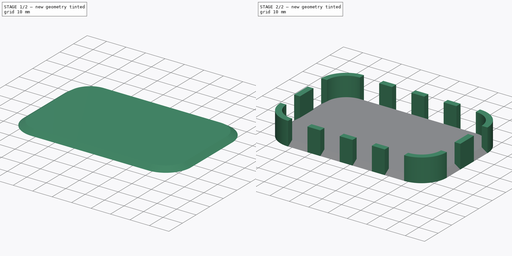
[diagram: build sequence overview — one tinted view per stage of 2, left to right]
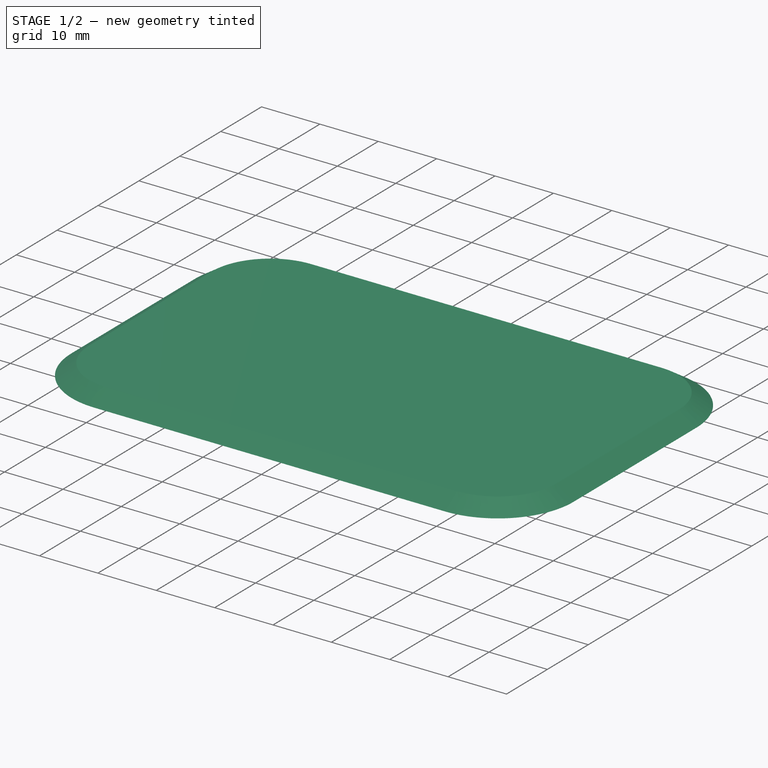
[diagram: stage 1 of 2 — iso view after this stage's code; geometry added in this stage tinted green]
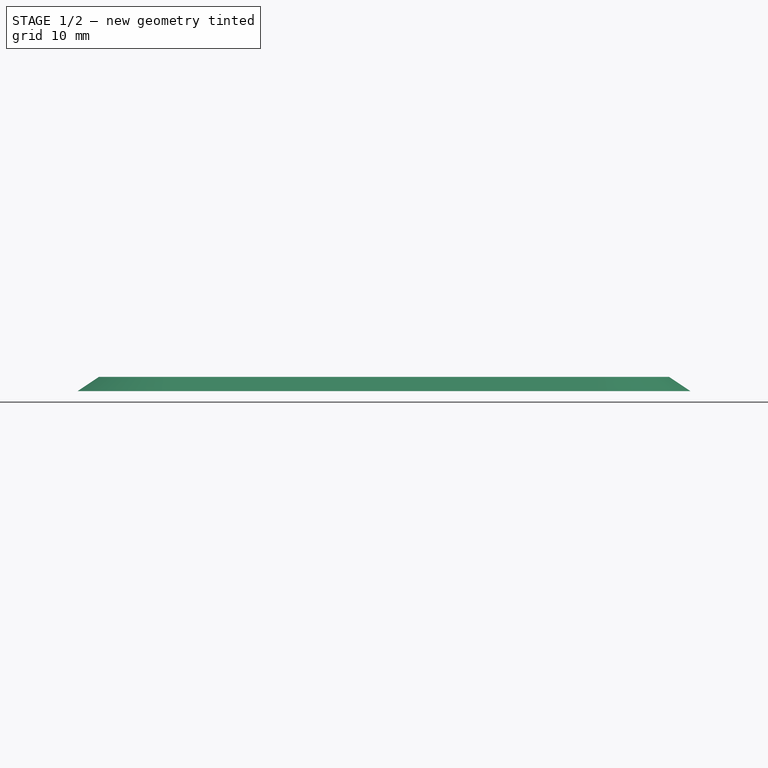
[diagram: stage 1 of 2 — front view after this stage's code; geometry added in this stage tinted green]
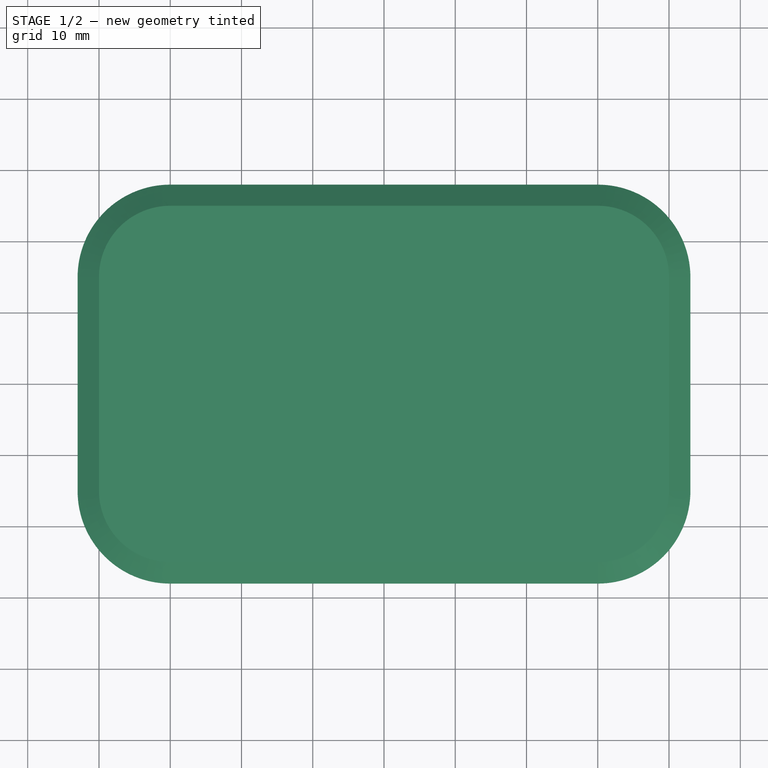
[diagram: stage 1 of 2 — top view after this stage's code; geometry added in this stage tinted green]
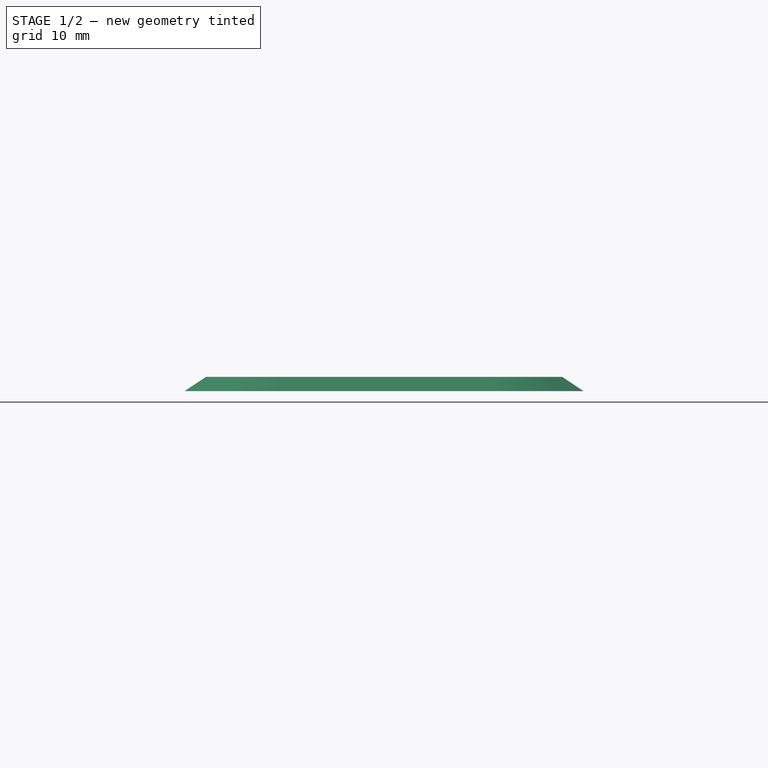
[diagram: stage 1 of 2 — right view after this stage's code; geometry added in this stage tinted green]
FCSTD DOCUMENT  (FreeCAD 2024.3R38774 (Git))
Label: ant bait box 3
License: All rights reserved
LicenseURL: https://en.wikipedia.org/wiki/All_rights_reserved
objects: Sketcher::SketchObject×4, PartDesign::Pad×2, PartDesign::AdditivePipe×1, PartDesign::Body×1
note: 18 computed .brp shape members not serialized (recipe doc carries the construction recipe); baked Part::Feature solids carry a one-line shape summary decoded from their .brp

FEATURE [Sketcher::SketchObject] Sketch  label="path"
  ArcFitTolerance = 1e-06
  AttachmentSupport = -> [XY_Plane]
  FullyConstrained = true
  MakeInternals = false
  MapMode = 5
  sketch-geometry (13):
    g0: LineSegment StartX=-40 StartY=15 StartZ=0 EndX=-40 EndY=-15 EndZ=0
    g1: LineSegment StartX=-30 StartY=-25 StartZ=0 EndX=30 EndY=-25 EndZ=0
    g2: LineSegment StartX=40 StartY=-15 StartZ=0 EndX=40 EndY=15 EndZ=0
    g3: LineSegment StartX=30 StartY=25 StartZ=0 EndX=-30 EndY=25 EndZ=0
    g4: GeomPoint [constr] X=0 Y=0 Z=0
    g5: ArcOfCircle CenterX=-30 CenterY=15 CenterZ=0 NormalX=0 NormalY=0 NormalZ=1 AngleXU=0 Radius=10 StartAngle=1.5708 EndAngle=3.14159
    g6: GeomPoint [constr] X=-40 Y=25 Z=0
    g7: ArcOfCircle CenterX=-30 CenterY=-15 CenterZ=0 NormalX=0 NormalY=0 NormalZ=1 AngleXU=0 Radius=10 StartAngle=3.14159 EndAngle=4.71239
    g8: GeomPoint [constr] X=-40 Y=-25 Z=0
    g9: ArcOfCircle CenterX=30 CenterY=-15 CenterZ=0 NormalX=0 NormalY=0 NormalZ=1 AngleXU=0 Radius=10 StartAngle=4.71239 EndAngle=6.28319
    g10: GeomPoint [constr] X=40 Y=-25 Z=0
    g11: ArcOfCircle CenterX=30 CenterY=15 CenterZ=0 NormalX=0 NormalY=0 NormalZ=1 AngleXU=0 Radius=10 StartAngle=0 EndAngle=1.5708
    g12: GeomPoint [constr] X=40 Y=25 Z=0
  constraints (28):
    c: Vertical(g0)
    c: Vertical(g2)
    c: Horizontal(g1)
    c: Horizontal(g3)
    c: Symmetric(g10,g6,g4)
    c: Coincident(g4,g-1)
    c: PointOnObject(g6,g3)
    c: PointOnObject(g6,g0)
    c: Tangent(g3,g5) = -1.5708
    c: Tangent(g0,g5) = -1.5708
    c: PointOnObject(g8,g0)
    c: PointOnObject(g8,g1)
    c: Tangent(g0,g7) = -1.5708
    c: Tangent(g1,g7) = -1.5708
    c: PointOnObject(g10,g1)
    c: PointOnObject(g10,g2)
    c: Tangent(g1,g9) = -1.5708
    c: Tangent(g2,g9) = -1.5708
    c: PointOnObject(g12,g2)
    c: PointOnObject(g12,g3)
    c: Tangent(g2,g11) = -1.5708
    c: Tangent(g3,g11) = -1.5708
    c: Equal(g5,g11)
    c: Equal(g11,g9)
    c: Equal(g9,g7)
    c: Diameter(g5) = 20
    c: DistanceY(g1,g3) = 50
    c: DistanceX(g0,g2) = 80
FEATURE [Sketcher::SketchObject] Sketch001
  ArcFitTolerance = 1e-06
  AttachmentSupport = -> [XY_Plane]
  FullyConstrained = true
  MakeInternals = false
  MapMode = 5
  sketch-geometry (13):
    g0: LineSegment StartX=-40 StartY=15 StartZ=0 EndX=-40 EndY=-15 EndZ=0
    g1: LineSegment StartX=-30 StartY=-25 StartZ=0 EndX=30 EndY=-25 EndZ=0
    g2: LineSegment StartX=40 StartY=-15 StartZ=0 EndX=40 EndY=15 EndZ=0
    g3: LineSegment StartX=30 StartY=25 StartZ=0 EndX=-30 EndY=25 EndZ=0
    g4: GeomPoint [constr] X=0 Y=0 Z=0
    g5: ArcOfCircle CenterX=-30 CenterY=15 CenterZ=0 NormalX=0 NormalY=0 NormalZ=1 AngleXU=0 Radius=10 StartAngle=1.5708 EndAngle=3.14159
    g6: GeomPoint [constr] X=-40 Y=25 Z=0
    g7: ArcOfCircle CenterX=-30 CenterY=-15 CenterZ=0 NormalX=0 NormalY=0 NormalZ=1 AngleXU=0 Radius=10 StartAngle=3.14159 EndAngle=4.71239
    g8: GeomPoint [constr] X=-40 Y=-25 Z=0
    g9: ArcOfCircle CenterX=30 CenterY=-15 CenterZ=0 NormalX=0 NormalY=0 NormalZ=1 AngleXU=0 Radius=10 StartAngle=4.71239 EndAngle=6.28319
    g10: GeomPoint [constr] X=40 Y=-25 Z=0
    g11: ArcOfCircle CenterX=30 CenterY=15 CenterZ=0 NormalX=0 NormalY=0 NormalZ=1 AngleXU=0 Radius=10 StartAngle=0 EndAngle=1.5708
    g12: GeomPoint [constr] X=40 Y=25 Z=0
  constraints (28):
    c: Vertical(g0)
    c: Vertical(g2)
    c: Horizontal(g1)
    c: Horizontal(g3)
    c: Symmetric(g10,g6,g4)
    c: Coincident(g4,g-1)
    c: PointOnObject(g6,g3)
    c: PointOnObject(g6,g0)
    c: Tangent(g3,g5) = -1.5708
    c: Tangent(g0,g5) = -1.5708
    c: PointOnObject(g8,g0)
    c: PointOnObject(g8,g1)
    c: Tangent(g0,g7) = -1.5708
    c: Tangent(g1,g7) = -1.5708
    c: PointOnObject(g10,g1)
    c: PointOnObject(g10,g2)
    c: Tangent(g1,g9) = -1.5708
    c: Tangent(g2,g9) = -1.5708
    c: PointOnObject(g12,g2)
    c: PointOnObject(g12,g3)
    c: Tangent(g2,g11) = -1.5708
    c: Tangent(g3,g11) = -1.5708
    c: Equal(g5,g11)
    c: Equal(g11,g9)
    c: Equal(g9,g7)
    c: Diameter(g5) = 20
    c: DistanceY(g1,g3) = 50
    c: DistanceX(g0,g2) = 80
FEATURE [Sketcher::SketchObject] Sketch002  label="prof"
  ArcFitTolerance = 1e-06
  AttachmentSupport = -> [YZ_Plane]
  FullyConstrained = true
  MakeInternals = false
  MapMode = 5
  Placement = pos=(0,0,0) rot=(0.57735,0.57735,0.57735;2.0944rad)
  sketch-geometry (3):
    g0: LineSegment StartX=-25 StartY=0 StartZ=0 EndX=-28 EndY=0 EndZ=0
    g1: LineSegment StartX=-28 StartY=0 StartZ=0 EndX=-25 EndY=2 EndZ=0
    g2: LineSegment StartX=-25 StartY=2 StartZ=0 EndX=-25 EndY=0 EndZ=0
  constraints (9):
    c: PointOnObject(g0,g-1)
    c: PointOnObject(g0,g-1)
    c: Coincident(g0,g1)
    c: Coincident(g1,g2)
    c: Coincident(g2,g0)
    c: Vertical(g2)
    c: DistanceY(g2,g2) = 2
    c: DistanceX(g0,g0) = 3
    c: DistanceX(g0,g-1) = 25
FEATURE [PartDesign::AdditivePipe] AdditivePipe
  AuxilleryCurvelinear = true
  AuxillerySpineTangent = false
  Binormal = (0,0,0)
  Mode = 0
  Placement = pos=(0,0,0) rot=(1,1,1;2.0944rad)
  Profile = -> Sketch002
  Refine = true
  Spine = -> Sketch
  SpineTangent = false
  Suppressed = false
  Transformation = 0
  Transition = 0
FEATURE [PartDesign::Pad] Pad
  BaseFeature = -> AdditivePipe
  Direction = (0,0,1)
  Length = 2
  Length2 = 10
  Placement = pos=(0,0,0) rot=(1,1,1;2.0944rad)
  Profile = -> Sketch001
  ReferenceAxis = -> Sketch001 [N_Axis]
  Refine = true
  Suppressed = false
  Type = 0
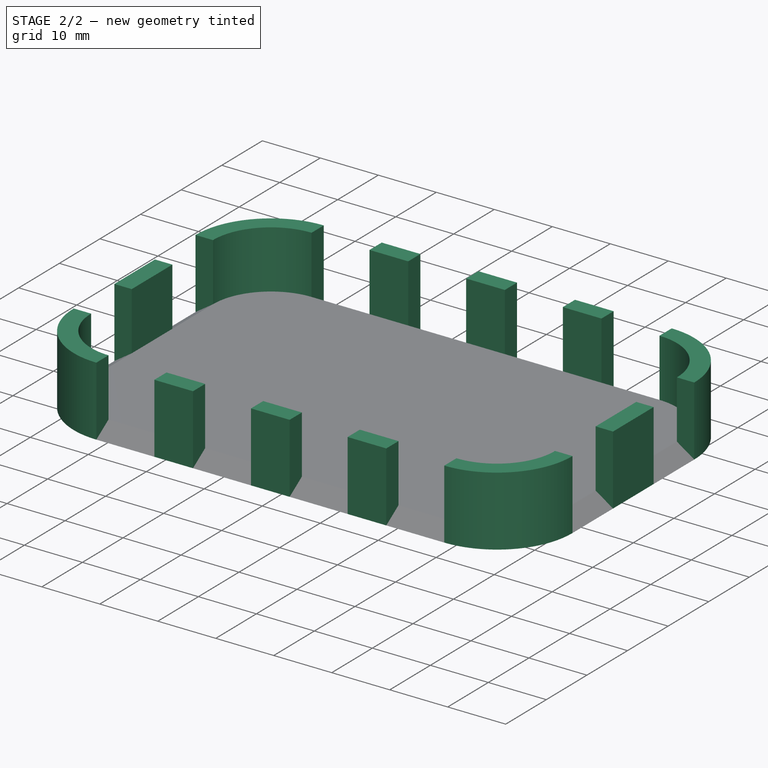
[diagram: stage 2 of 2 — iso view after this stage's code; geometry added in this stage tinted green]
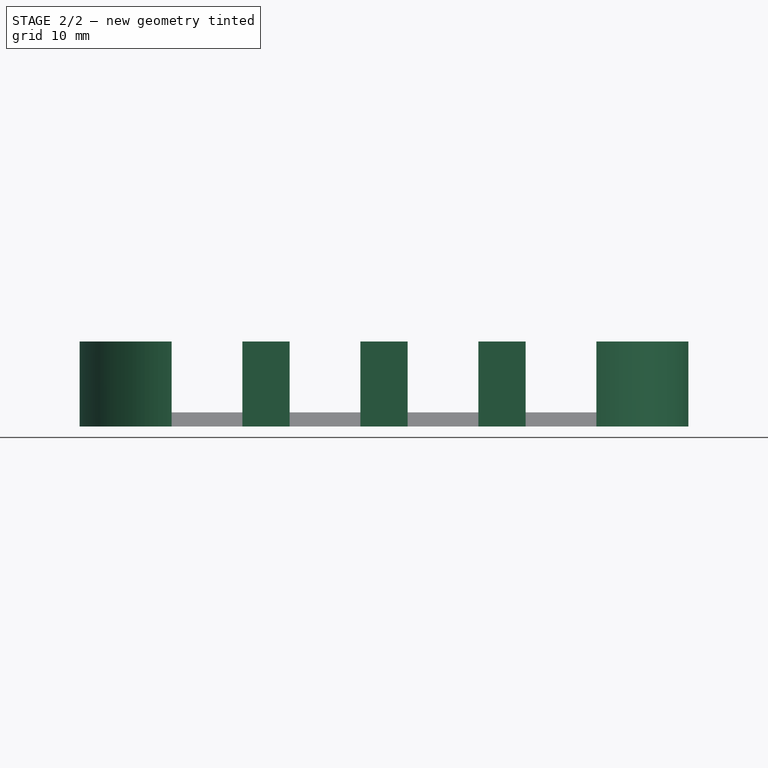
[diagram: stage 2 of 2 — front view after this stage's code; geometry added in this stage tinted green]
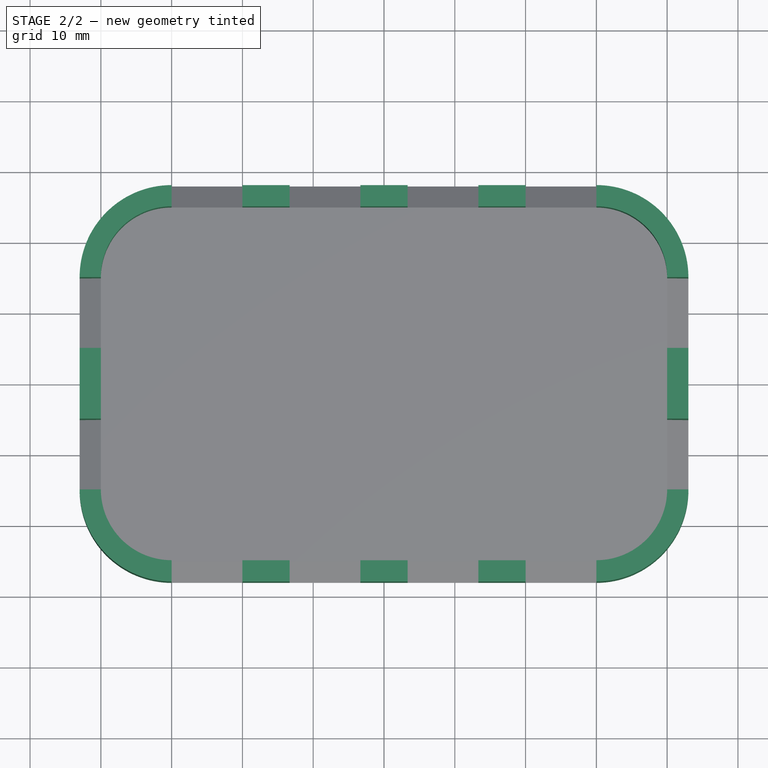
[diagram: stage 2 of 2 — top view after this stage's code; geometry added in this stage tinted green]
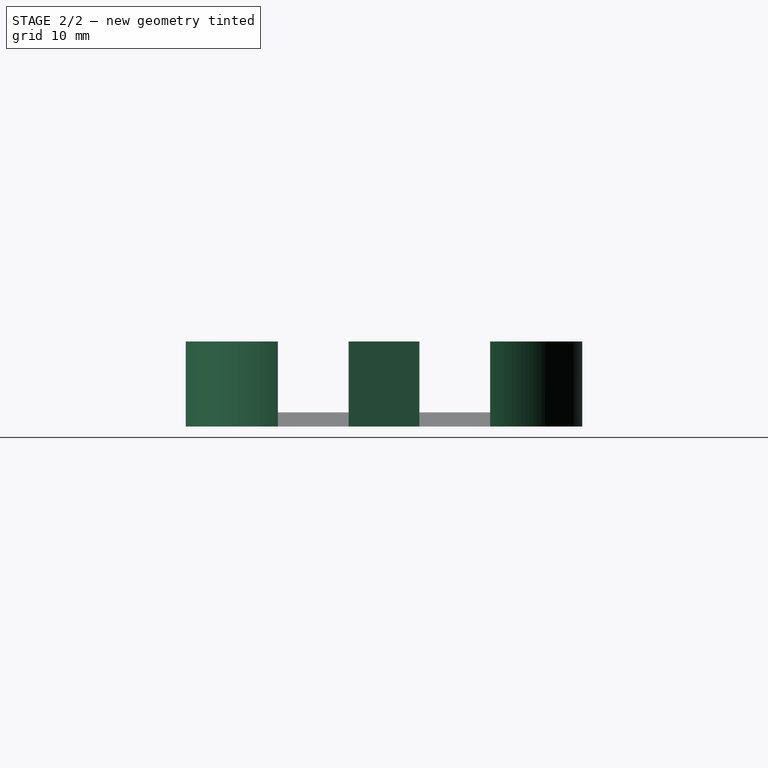
[diagram: stage 2 of 2 — right view after this stage's code; geometry added in this stage tinted green]
FEATURE [Sketcher::SketchObject] Sketch003  label="wall"
  ArcFitTolerance = 1e-06
  AttachmentSupport = -> [XY_Plane]
  FullyConstrained = true
  MakeInternals = false
  MapMode = 5
  sketch-geometry (48):
    g0: ArcOfCircle CenterX=-30 CenterY=15 CenterZ=0 NormalX=0 NormalY=0 NormalZ=1 AngleXU=0 Radius=13 StartAngle=1.5708 EndAngle=3.14159
    g1: ArcOfCircle CenterX=-30 CenterY=-15 CenterZ=0 NormalX=0 NormalY=0 NormalZ=1 AngleXU=0 Radius=13 StartAngle=3.14159 EndAngle=4.71239
    g2: ArcOfCircle CenterX=30 CenterY=-15 CenterZ=0 NormalX=0 NormalY=0 NormalZ=1 AngleXU=0 Radius=13 StartAngle=4.71239 EndAngle=6.28319
    g3: ArcOfCircle CenterX=30 CenterY=15 CenterZ=0 NormalX=0 NormalY=0 NormalZ=1 AngleXU=0 Radius=13 StartAngle=-1.8e-15 EndAngle=1.5708
    g4: LineSegment StartX=-30 StartY=25 StartZ=0 EndX=-30 EndY=28 EndZ=0
    g5: LineSegment StartX=30 StartY=25 StartZ=0 EndX=30 EndY=28 EndZ=0
    g6: LineSegment StartX=20 StartY=28 StartZ=0 EndX=20 EndY=25 EndZ=0
    g7: LineSegment StartX=20 StartY=25 StartZ=0 EndX=13.3333 EndY=25 EndZ=0
    g8: LineSegment StartX=13.3333 StartY=25 StartZ=0 EndX=13.3333 EndY=28 EndZ=0
    g9: LineSegment StartX=13.3333 StartY=28 StartZ=0 EndX=20 EndY=28 EndZ=0
    g10: LineSegment StartX=3.33333 StartY=28 StartZ=0 EndX=3.33333 EndY=25 EndZ=0
    g11: LineSegment StartX=3.33333 StartY=25 StartZ=0 EndX=-3.33333 EndY=25 EndZ=0
    g12: LineSegment StartX=-3.33333 StartY=25 StartZ=0 EndX=-3.33333 EndY=28 EndZ=0
    g13: LineSegment StartX=-3.33333 StartY=28 StartZ=0 EndX=3.33333 EndY=28 EndZ=0
    g14: LineSegment StartX=-20 StartY=28 StartZ=0 EndX=-13.3333 EndY=28 EndZ=0
    g15: LineSegment StartX=-13.3333 StartY=28 StartZ=0 EndX=-13.3333 EndY=25 EndZ=0
    g16: LineSegment StartX=-13.3333 StartY=25 StartZ=0 EndX=-20 EndY=25 EndZ=0
    g17: LineSegment StartX=-20 StartY=25 StartZ=0 EndX=-20 EndY=28 EndZ=0
    g18: ArcOfCircle CenterX=-30 CenterY=-15 CenterZ=0 NormalX=0 NormalY=0 NormalZ=1 AngleXU=0 Radius=10 StartAngle=3.14159 EndAngle=4.71239
    g19: ArcOfCircle CenterX=30 CenterY=-15 CenterZ=0 NormalX=0 NormalY=0 NormalZ=1 AngleXU=0 Radius=10 StartAngle=4.71239 EndAngle=6.28319
    g20: LineSegment StartX=-20 StartY=-25 StartZ=0 EndX=-20 EndY=-28 EndZ=0
    g21: LineSegment StartX=-20 StartY=-28 StartZ=0 EndX=-13.3333 EndY=-28 EndZ=0
    g22: LineSegment StartX=-13.3333 StartY=-28 StartZ=0 EndX=-13.3333 EndY=-25 EndZ=0
    g23: LineSegment StartX=-13.3333 StartY=-25 StartZ=0 EndX=-20 EndY=-25 EndZ=0
    g24: LineSegment StartX=-3.33333 StartY=-25 StartZ=0 EndX=-3.33333 EndY=-28 EndZ=0
    g25: LineSegment StartX=-3.33333 StartY=-28 StartZ=0 EndX=3.33333 EndY=-28 EndZ=0
    g26: LineSegment StartX=3.33333 StartY=-28 StartZ=0 EndX=3.33333 EndY=-25 EndZ=0
    g27: LineSegment StartX=3.33333 StartY=-25 StartZ=0 EndX=-3.33333 EndY=-25 EndZ=0
    g28: LineSegment StartX=13.3333 StartY=-25 StartZ=0 EndX=13.3333 EndY=-28 EndZ=0
    g29: LineSegment StartX=13.3333 StartY=-28 StartZ=0 EndX=20 EndY=-28 EndZ=0
    g30: LineSegment StartX=20 StartY=-28 StartZ=0 EndX=20 EndY=-25 EndZ=0
    g31: LineSegment StartX=20 StartY=-25 StartZ=0 EndX=13.3333 EndY=-25 EndZ=0
    g32: LineSegment StartX=-30 StartY=-28 StartZ=0 EndX=-30 EndY=-25 EndZ=0
    g33: LineSegment StartX=30 StartY=-28 StartZ=0 EndX=30 EndY=-25 EndZ=0
    g34: ArcOfCircle CenterX=-30 CenterY=15 CenterZ=0 NormalX=0 NormalY=0 NormalZ=1 AngleXU=0 Radius=10 StartAngle=1.5708 EndAngle=3.14159
    g35: ArcOfCircle CenterX=30 CenterY=15 CenterZ=0 NormalX=0 NormalY=0 NormalZ=1 AngleXU=0 Radius=10 StartAngle=-1.8e-15 EndAngle=1.5708
    g36: LineSegment StartX=-43 StartY=15 StartZ=0 EndX=-40 EndY=15 EndZ=0
    g37: LineSegment StartX=-43 StartY=-15 StartZ=0 EndX=-40 EndY=-15 EndZ=0
    g38: LineSegment StartX=40 StartY=-15 StartZ=0 EndX=43 EndY=-15 EndZ=0
    g39: LineSegment StartX=40 StartY=15 StartZ=0 EndX=43 EndY=15 EndZ=0
    g40: LineSegment StartX=-43 StartY=5 StartZ=0 EndX=-43 EndY=-5 EndZ=0
    g41: LineSegment StartX=-43 StartY=-5 StartZ=0 EndX=-40 EndY=-5 EndZ=0
    g42: LineSegment StartX=-40 StartY=-5 StartZ=0 EndX=-40 EndY=5 EndZ=0
    g43: LineSegment StartX=-40 StartY=5 StartZ=0 EndX=-43 EndY=5 EndZ=0
    g44: LineSegment StartX=40 StartY=5 StartZ=0 EndX=40 EndY=-5 EndZ=0
    g45: LineSegment StartX=40 StartY=-5 StartZ=0 EndX=43 EndY=-5 EndZ=0
    g46: LineSegment StartX=43 StartY=-5 StartZ=0 EndX=43 EndY=5 EndZ=0
    g47: LineSegment StartX=43 StartY=5 StartZ=0 EndX=40 EndY=5 EndZ=0
  constraints (149):
    c: Equal(g0,g3)
    c: Equal(g3,g2)
    c: DistanceX(g0,g3) = 60
    c: DistanceY(g1,g0) = 30
    c: Diameter(g0) = 26
    c: Coincident(g4,g0)
    c: Vertical(g4)
    c: Coincident(g5,g3)
    c: Vertical(g5)
    c: Vertical(g6)
    c: Coincident(g6,g7)
    c: Horizontal(g7)
    c: Coincident(g7,g8)
    c: Coincident(g8,g9)
    c: Coincident(g9,g6)
    c: Coincident(g10,g11)
    c: Coincident(g11,g12)
    c: Coincident(g12,g13)
    c: Coincident(g13,g10)
    c: Horizontal(g14)
    c: Coincident(g14,g15)
    c: Coincident(g15,g16)
    c: Horizontal(g16)
    c: Coincident(g16,g17)
    c: Coincident(g17,g14)
    c: Horizontal(g14,g0)
    c: Horizontal(g9)
    c: Horizontal(g14,g12)
    c: Horizontal(g10,g8)
    c: Horizontal(g6,g3)
    c: Horizontal(g5,g6)
    c: Horizontal(g7,g10)
    c: Horizontal(g11)
    c: Horizontal(g11,g15)
    c: Horizontal(g4,g16)
    c: Vertical(g17)
    c: Vertical(g15)
    c: Vertical(g12)
    c: Vertical(g10)
    c: Vertical(g8)
    c: Symmetric(g12,g10,g-2)
    c: DistanceX(g0,g14) = 10
    c: DistanceX(g14,g12) = 10
    c: DistanceX(g10,g8) = 10
    c: DistanceX(g6,g3) = 10
    c: Symmetric(g0,g1,g-1)
    c: DistanceY(g4,g4) = 3
    c: Equal(g9,g13)
    c: Equal(g13,g14)
    c: Horizontal(g34,g0)
    c: Coincident(g20,g21)
    c: Coincident(g21,g22)
    c: Coincident(g22,g23)
    c: Coincident(g23,g20)
    c: Vertical(g20)
    c: Vertical(g22)
    c: Horizontal(g21)
    c: Horizontal(g23)
    c: Coincident(g24,g25)
    c: Coincident(g25,g26)
    c: Coincident(g26,g27)
    c: Coincident(g27,g24)
    c: Vertical(g24)
    c: Vertical(g26)
    c: Horizontal(g25)
    c: Horizontal(g27)
    c: Coincident(g28,g29)
    c: Coincident(g29,g30)
    c: Coincident(g30,g31)
    c: Coincident(g31,g28)
    c: Vertical(g28)
    c: Vertical(g30)
    c: Horizontal(g29)
    c: Horizontal(g31)
    c: Horizontal(g19,g30)
    c: Horizontal(g28,g26)
    c: Horizontal(g24,g22)
    c: Horizontal(g20,g18)
    c: Horizontal(g1,g20)
    c: Horizontal(g21,g24)
    c: Horizontal(g25,g28)
    c: Horizontal(g29,g2)
    c: Vertical(g16,g20)
    c: Vertical(g22,g15)
    c: Vertical(g24,g11)
    c: Vertical(g26,g10)
    c: Vertical(g28,g7)
    c: Vertical(g30,g6)
    c: Coincident(g32,g1)
    c: Coincident(g32,g18)
    c: Vertical(g32)
    c: Coincident(g33,g2)
    c: Coincident(g33,g19)
    c: Vertical(g33)
    c: DistanceY(g32,g32) = 3
    c: Vertical(g19,g5)
    c: DistanceX(g0,g34) = 3
    c: Equal(g2,g1)
    c: Perpendicular(g19,g33)
    c: Horizontal(g19,g18)
    c: Horizontal(g19,g2)
    c: Perpendicular(g18,g32)
    c: Horizontal(g35,g3)
    c: Coincident(g34,g4)
    c: Coincident(g35,g3)
    c: Coincident(g35,g5)
    c: Coincident(g36,g0)
    c: Coincident(g36,g34)
    c: Coincident(g37,g1)
    c: Coincident(g37,g18)
    c: Horizontal(g37)
    c: Coincident(g38,g19)
    c: Coincident(g38,g2)
    c: Coincident(g39,g35)
    c: Coincident(g39,g3)
    c: Coincident(g40,g41)
    c: Coincident(g41,g42)
    c: Coincident(g42,g43)
    c: Coincident(g43,g40)
    c: Vertical(g40)
    c: Vertical(g42)
    c: Horizontal(g41)
    c: Horizontal(g43)
    c: Coincident(g44,g45)
    c: Coincident(g45,g46)
    c: Coincident(g46,g47)
    c: Coincident(g47,g44)
    c: Vertical(g44)
    c: Vertical(g46)
    c: Horizontal(g45)
    c: Horizontal(g47)
    c: Vertical(g44,g35)
    c: Vertical(g44,g19)
    c: Vertical(g2,g45)
    c: Vertical(g46,g3)
    c: DistanceY(g46,g3) = 10
    c: DistanceY(g2,g45) = 10
    c: Vertical(g18,g41)
    c: Vertical(g42,g34)
    c: Vertical(g0,g40)
    c: Vertical(g40,g1)
    c: DistanceY(g40,g0) = 10
    c: DistanceY(g1,g40) = 10
    c: Perpendicular(g34,g36)
    c: Perpendicular(g0,g36)
    c: Perpendicular(g18,g37)
    c: Perpendicular(g1,g37)
    c: Perpendicular(g2,g33)
    c: Horizontal(g35,g34)
FEATURE [PartDesign::Pad] Pad001
  BaseFeature = -> Pad
  Direction = (0,0,1)
  Length = 12
  Length2 = 10
  Placement = pos=(0,0,0) rot=(1,1,1;2.0944rad)
  Profile = -> Sketch003
  ReferenceAxis = -> Sketch003 [N_Axis]
  Refine = true
  Suppressed = false
  Type = 0
FEATURE [PartDesign::Body] Body
  AllowCompound = false
  Group = -> [Sketch,Sketch001,Sketch002,AdditivePipe,Pad,Sketch003,Pad001]
  Origin = -> Origin
  Tip = -> Pad001
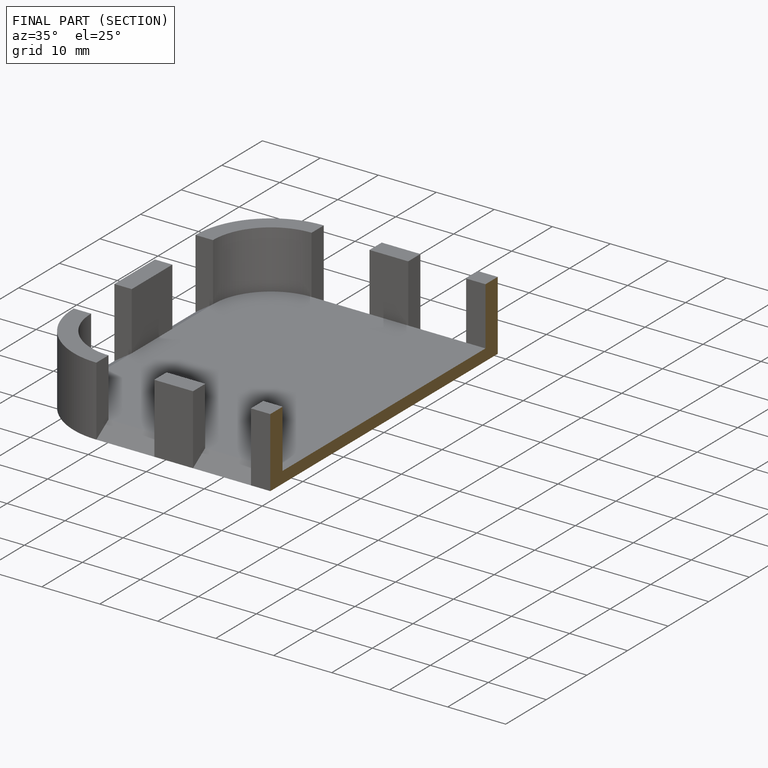
[diagram: finished part — half-section view (interior)]
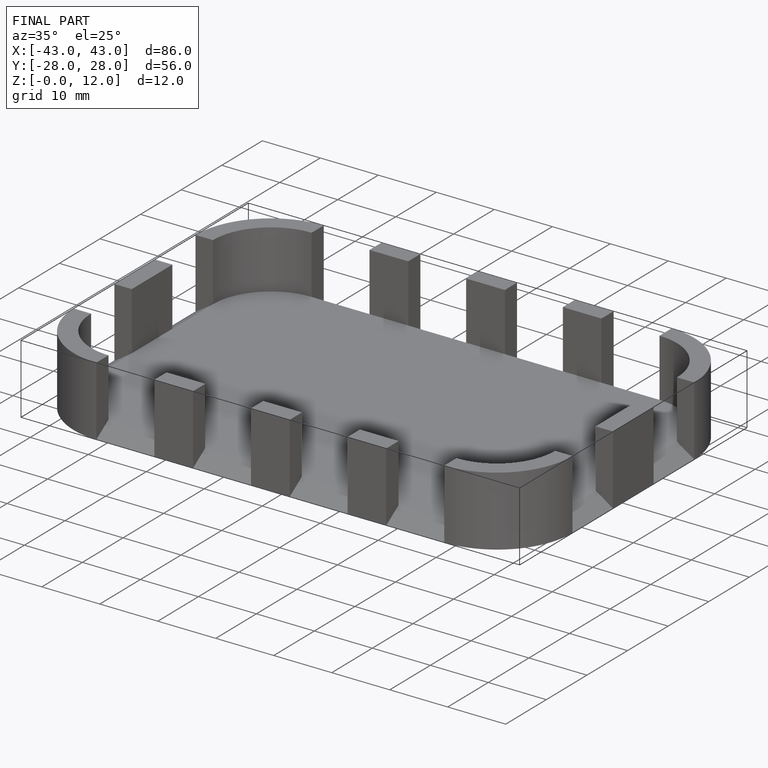
[diagram: finished part — iso view with bounding-box wireframe]
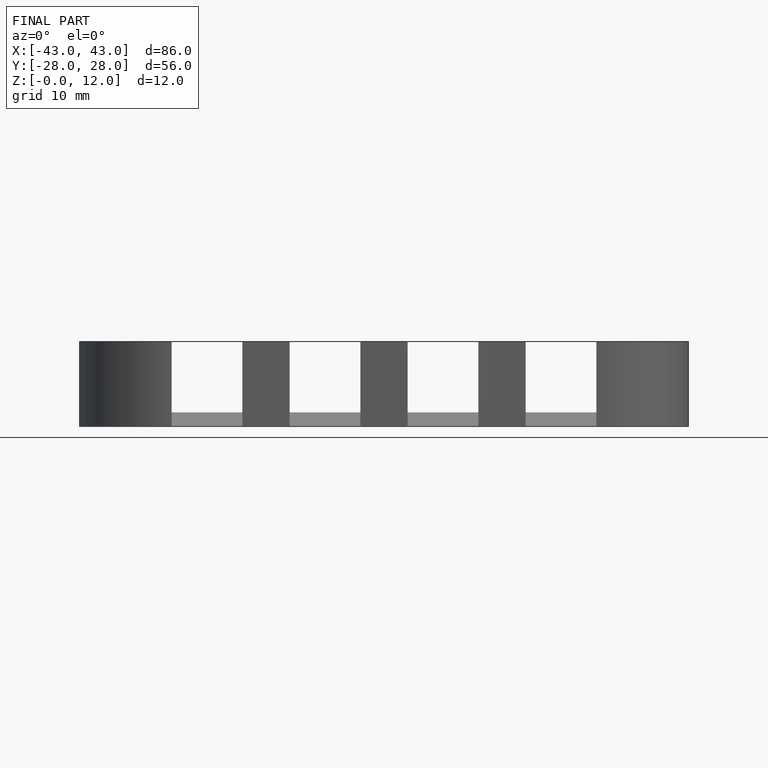
[diagram: finished part — front view with bounding-box wireframe]
